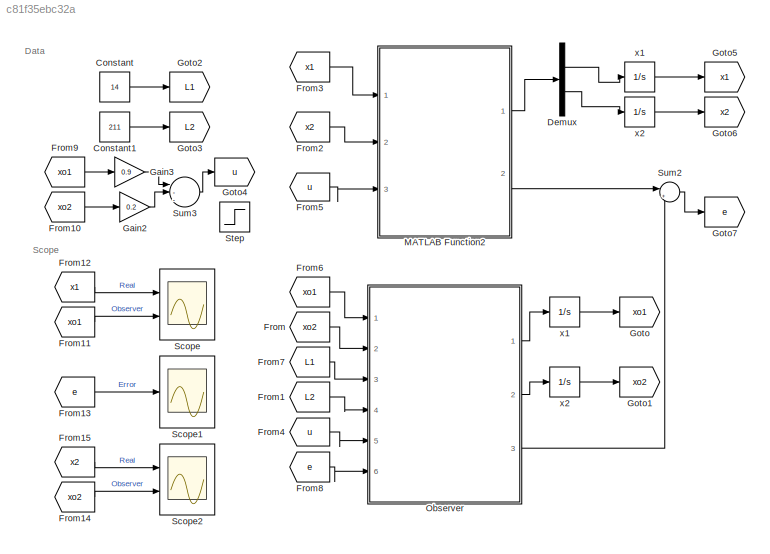
MODEL slx_c81f35ebc32a
KIND model
CONFIG AbsTol = auto
CONFIG EnableMultiTasking = off
CONFIG FixedStep = 0.01
CONFIG MaxStep = auto
CONFIG MinStep = auto
CONFIG RelTol = 1e-3
CONFIG SampleTimeConstraint = Unconstrained
CONFIG SolverName = ode4
CONFIG StartTime = 0.0
CONFIG StopTime = 10.0
BLOCK [Constant] Constant
  Value = 14
BLOCK [Constant] Constant1
  Value = 211
BLOCK [Demux] Demux
  Outputs = 2
  Ports = [1, 2]
BLOCK [From] From
  GotoTag = xo2
BLOCK [From] From1
  GotoTag = L2
BLOCK [From] From10
  GotoTag = xo2
BLOCK [From] From11
  GotoTag = xo1
BLOCK [From] From12
  GotoTag = x1
BLOCK [From] From13
  GotoTag = e
BLOCK [From] From14
  GotoTag = xo2
BLOCK [From] From15
  GotoTag = x2
BLOCK [From] From2
  GotoTag = x2
BLOCK [From] From3
  GotoTag = x1
BLOCK [From] From4
  GotoTag = u
BLOCK [From] From5
  GotoTag = u
BLOCK [From] From6
  GotoTag = xo1
BLOCK [From] From7
  GotoTag = L1
BLOCK [From] From8
  GotoTag = e
BLOCK [From] From9
  GotoTag = xo1
BLOCK [Gain] Gain2
  Gain = 0.2
BLOCK [Gain] Gain3
  Gain = 0.9
BLOCK [Goto] Goto
  GotoTag = xo1
BLOCK [Goto] Goto1
  GotoTag = xo2
BLOCK [Goto] Goto2
  GotoTag = L1
BLOCK [Goto] Goto3
  GotoTag = L2
BLOCK [Goto] Goto4
  GotoTag = u
BLOCK [Goto] Goto5
  GotoTag = x1
BLOCK [Goto] Goto6
  GotoTag = x2
BLOCK [Goto] Goto7
  GotoTag = e
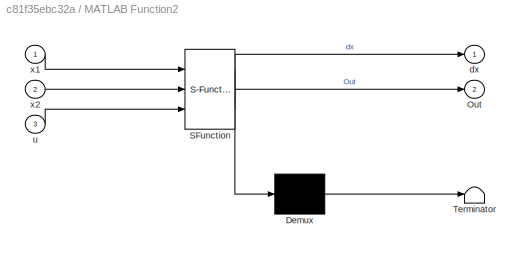
BLOCK [SubSystem] MATLAB Function2
  ErrorFcn = Stateflow.Translate.translate
  PermitHierarchicalResolution = ExplicitOnly
  Ports = [3, 2]
  RequestExecContextInheritance = off
  SFBlockType = MATLAB Function
  TreatAsAtomicUnit = on
BLOCK [Demux] MATLAB Function2/ Demux 
  Outputs = 1
  Ports = [1, 1]
BLOCK [S-Function] MATLAB Function2/ SFunction 
  EnableBusSupport = on
  FunctionName = sf_sfun
  PortCounts = [3 3]
  Ports = [3, 3]
  SFcnIsStateOwnerBlock = off
  SFunctionDeploymentMode = off
  Tag = Stateflow S-Function 3
BLOCK [Terminator] MATLAB Function2/ Terminator 
BLOCK [Outport] MATLAB Function2/Out
  Port = 2
BLOCK [Outport] MATLAB Function2/dx
BLOCK [Inport] MATLAB Function2/u
  Port = 3
BLOCK [Inport] MATLAB Function2/x1
BLOCK [Inport] MATLAB Function2/x2
  Port = 2
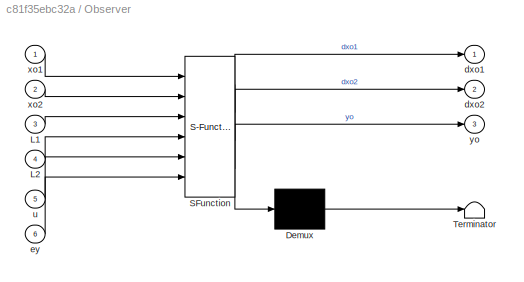
BLOCK [SubSystem] Observer
  ErrorFcn = Stateflow.Translate.translate
  PermitHierarchicalResolution = ExplicitOnly
  Ports = [6, 3]
  RequestExecContextInheritance = off
  SFBlockType = MATLAB Function
  TreatAsAtomicUnit = on
BLOCK [Demux] Observer/ Demux 
  Outputs = 1
  Ports = [1, 1]
BLOCK [S-Function] Observer/ SFunction 
  EnableBusSupport = on
  FunctionName = sf_sfun
  PortCounts = [6 4]
  Ports = [6, 4]
  SFcnIsStateOwnerBlock = off
  SFunctionDeploymentMode = off
  Tag = Stateflow S-Function 4
BLOCK [Terminator] Observer/ Terminator 
BLOCK [Inport] Observer/L1
  Port = 3
BLOCK [Inport] Observer/L2
  Port = 4
BLOCK [Outport] Observer/dxo1
BLOCK [Outport] Observer/dxo2
  Port = 2
BLOCK [Inport] Observer/ey
  Port = 6
BLOCK [Inport] Observer/u
  Port = 5
BLOCK [Inport] Observer/xo1
BLOCK [Inport] Observer/xo2
  Port = 2
BLOCK [Outport] Observer/yo
  Port = 3
BLOCK [Scope] Scope
  Floating = off
  NumInputPorts = 2
  Ports = [2]
  ScopeSpecificationString = Simulink.scopes.TimeScopeBlockCfg('CurrentConfiguration', extmgr.ConfigurationSet(extmgr.Configuration('Core','General UI',true),extmgr.Configuration('Core','Source UI',true),extmgr.Configuration('Sources','WiredSimulink',true),extmgr.Configuration('Visuals','Time Domain',true,'PlotType','Line','SerializedDisplays',{struct('MinYLimReal','-0.42748','MaxYLimReal','1.29273','YLabelReal','x_1','MinYLi...<+1619ch>
BLOCK [Scope] Scope1
  Floating = off
  NumInputPorts = 1
  Ports = [1]
  ScopeSpecificationString = Simulink.scopes.TimeScopeBlockCfg('CurrentConfiguration', extmgr.ConfigurationSet(extmgr.Configuration('Core','General UI',true),extmgr.Configuration('Core','Source UI',true),extmgr.Configuration('Sources','WiredSimulink',true,'DataLoggingVariableName','ScopeData1'),extmgr.Configuration('Visuals','Time Domain',true,'PlotType','Line','SerializedDisplays',{struct('MinYLimReal','-0.43852','MaxYLimRea...<+1618ch>
BLOCK [Scope] Scope2
  Floating = off
  NumInputPorts = 2
  Ports = [2]
  ScopeSpecificationString = Simulink.scopes.TimeScopeBlockCfg('CurrentConfiguration', extmgr.ConfigurationSet(extmgr.Configuration('Core','General UI',true),extmgr.Configuration('Core','Source UI',true),extmgr.Configuration('Sources','WiredSimulink',true,'DataLoggingVariableName','ScopeData2'),extmgr.Configuration('Visuals','Time Domain',true,'PlotType','Line','SerializedDisplays',{struct('MinYLimReal','-5.04886','MaxYLimRea...<+1624ch>
BLOCK [Step] Step
  SampleTime = 0
BLOCK [Sum] Sum2
  Inputs = |+-
  Ports = [2, 1]
BLOCK [Sum] Sum3
  Inputs = |--|+
  Ports = [3, 1]
BLOCK [Integrator] x1
  InitialCondition = 1
  NameLocation = top
  Ports = [1, 1]
BLOCK [Integrator] x1 
  NameLocation = top
  Ports = [1, 1]
BLOCK [Integrator] x2
  Ports = [1, 1]
BLOCK [Integrator] x2 
  Ports = [1, 1]
ANNOTATION (root): Data
ANNOTATION (root): Scope
LINE Constant1:1 -> Goto3:1
LINE Constant:1 -> Goto2:1
LINE Demux:1 -> x1:1
LINE Demux:2 -> x2:1
LINE From10:1 -> Gain2:1
LINE From11:1 -> Scope:2
LINE From12:1 -> Scope:1
LINE From13:1 -> Scope1:1
LINE From14:1 -> Scope2:2
LINE From15:1 -> Scope2:1
LINE From1:1 -> Observer:4
LINE From2:1 -> MATLAB Function2:2
LINE From3:1 -> MATLAB Function2:1
LINE From4:1 -> Observer:5
LINE From5:1 -> MATLAB Function2:3
LINE From6:1 -> Observer:1
LINE From7:1 -> Observer:3
LINE From8:1 -> Observer:6
LINE From9:1 -> Gain3:1
LINE From:1 -> Observer:2
LINE Gain2:1 -> Sum3:2
LINE Gain3:1 -> Sum3:1
LINE MATLAB Function2:1 -> Demux:1
LINE MATLAB Function2:2 -> Sum2:1
LINE Observer:1 -> x1 :1
LINE Observer:2 -> x2 :1
LINE Observer:3 -> Sum2:2
LINE Sum2:1 -> Goto7:1
LINE Sum3:1 -> Goto4:1
LINE x1 :1 -> Goto:1
LINE x1:1 -> Goto5:1
LINE x2 :1 -> Goto1:1
LINE x2:1 -> Goto6:1
CHART MATLAB Function2 states=1 transitions=1
  STATE_LABEL 'eML_blk_kernel()'
  STATE_LABEL 'SCRIPT:\nfunction [dx,Out] = Real_System(x1,x2,u)\n\nA = [0 1;0 -1];\nB = [0;10];\nC = [1 0];\nD = 0;\nx = [x1;x2];\ndx = A*x+B*u;\nOut = C*x+D*u;'
CHART Observer states=1 transitions=1
  STATE_LABEL 'eML_blk_kernel()'
  STATE_LABEL 'SCRIPT:\nfunction [dxo1,dxo2,yo] = Observer(xo1,xo2,L1, L2, u,ey)\n\nA = [0 1;0 -1];\nB = [0;10];\nC = [1 0];\nD = 0;\nL = [L1;L2];\nxo = [xo1;xo2];\ndxo = A*xo+B*u+L*ey;\ndxo1 = dxo(1);\ndxo2 = dxo(2);\nyo = C*xo+D*u;'
CHART  states=0 transitions=0
CHART  states=0 transitions=0
